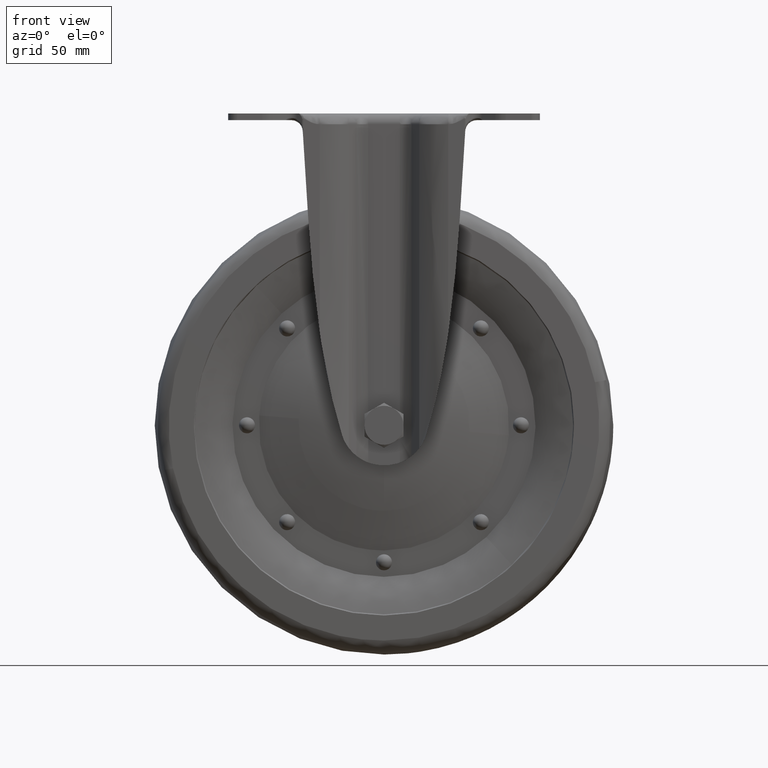
[diagram: clean part render]
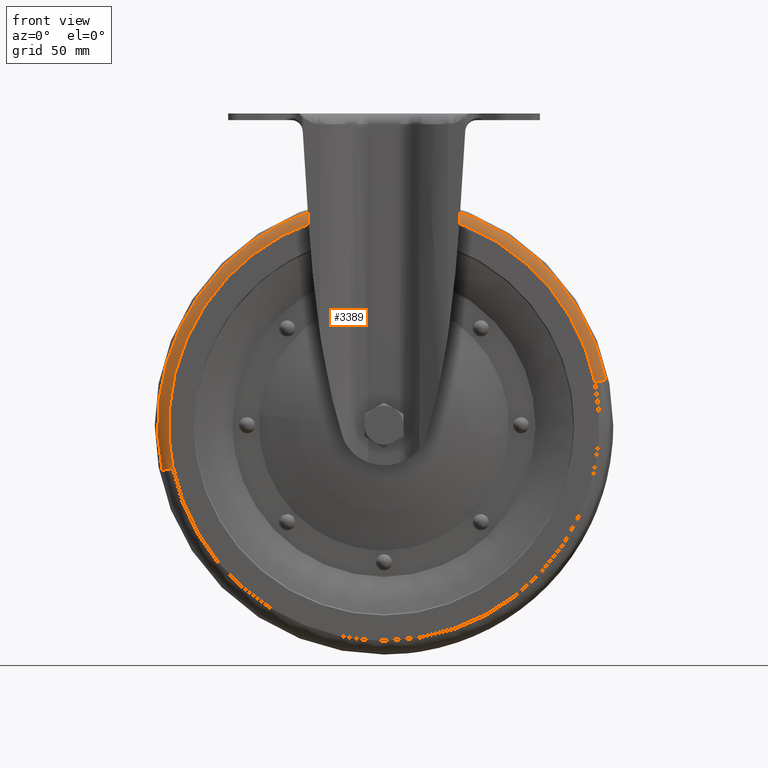
[diagram: same view with one face highlighted and labeled with its STEP entity id]
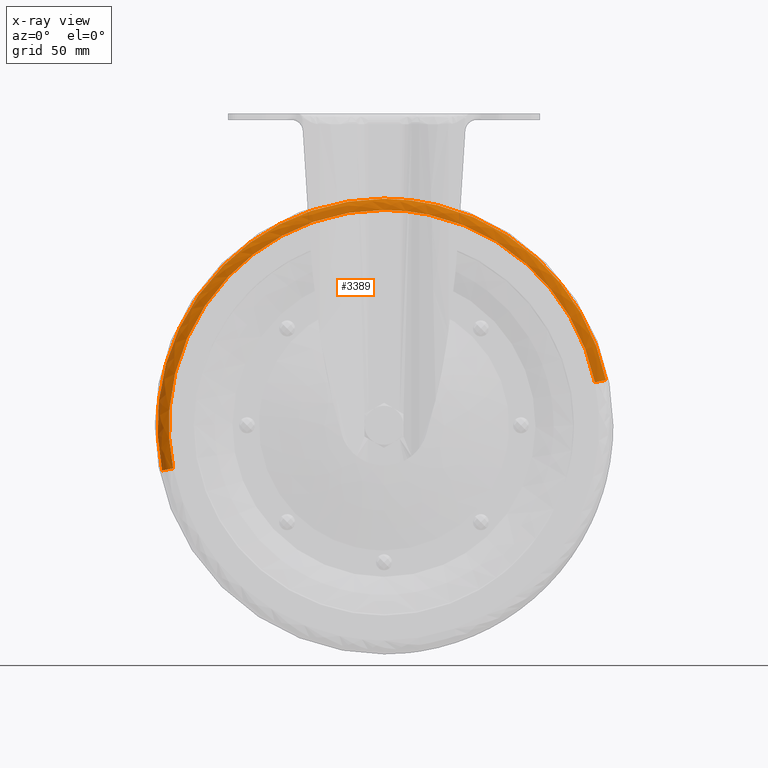
[diagram: x-ray of the same camera — body ghosted, the highlighted face saturated]
A machine part, front view. The second image highlights one B-rep face of the part: STEP entity #3389.
The next image is the same camera in x-ray: the body ghosted, the highlighted face saturated — about 0% of this face is hidden behind the body in this view.
In plain terms, the highlighted face is a freeform B-spline surface patch.
Its self-contained STEP definition (entity closure, byte-faithful):
#3099=CARTESIAN_POINT('',(0.0,-12.000020618110529,-37.212250381865452));
#3100=VERTEX_POINT('',#3099);
#3131=CARTESIAN_POINT('',(-96.797678357794183,-12.000014138391469,-155.728900118067400));
#3132=VERTEX_POINT('',#3131);
#3146=CARTESIAN_POINT('',(0.0,-12.000020618110529,-37.212250381865452));
#3147=CARTESIAN_POINT('',(-98.787753244613569,-12.000020497310594,-37.212250263207366));
#3148=CARTESIAN_POINT('',(-98.787752531803648,-12.000015194901881,-136.000000788220600));
#3149=CARTESIAN_POINT('',(-98.787752459901796,-12.000014660042572,-145.964820836724870));
#3150=CARTESIAN_POINT('',(-96.797678357794169,-12.000014138391476,-155.728900118067460));
#3158=(BOUNDED_CURVE()B_SPLINE_CURVE(2,(#3146,#3147,#3148,#3149,#3150),.UNSPECIFIED.,.F.,.U.)B_SPLINE_CURVE_WITH_KNOTS((3,2,3),(0.500000000000000,0.750000000000000,0.784232960802653),.UNSPECIFIED.)CURVE()GEOMETRIC_REPRESENTATION_ITEM()RATIONAL_B_SPLINE_CURVE((1.0,0.707106781186548,1.0,0.959893591683985,0.930770872198509))REPRESENTATION_ITEM(''));
#3159=EDGE_CURVE('',#3100,#3132,#3158,.T.);
#3194=CARTESIAN_POINT('',(96.797677946003574,-12.000016197202370,-116.271099965862010));
#3195=VERTEX_POINT('',#3194);
#3196=CARTESIAN_POINT('',(96.797677946003574,-12.000016197202376,-116.271099965861980));
#3197=CARTESIAN_POINT('',(80.684230996859725,-12.000020470205584,-37.212250527147681));
#3198=CARTESIAN_POINT('',(0.0,-12.000020618110529,-37.212250381865452));
#3206=(BOUNDED_CURVE()B_SPLINE_CURVE(2,(#3196,#3197,#3198),.UNSPECIFIED.,.F.,.U.)B_SPLINE_CURVE_WITH_KNOTS((3,3),(0.284232964236956,0.500000000000000),.UNSPECIFIED.)CURVE()GEOMETRIC_REPRESENTATION_ITEM()RATIONAL_B_SPLINE_CURVE((0.930770866355238,0.747213193526099,1.0))REPRESENTATION_ITEM(''));
#3207=EDGE_CURVE('',#3195,#3100,#3206,.T.);
#3261=CARTESIAN_POINT('',(91.997389573494090,-15.999999999999989,-117.249474772260300));
#3262=VERTEX_POINT('',#3261);
#3263=CARTESIAN_POINT('',(96.797677946003574,-12.000016197202372,-116.271099965861990));
#3264=CARTESIAN_POINT('',(95.997618807998393,-16.000000420865195,-116.434164690987730));
#3265=CARTESIAN_POINT('',(91.997389573494090,-15.999999999999995,-117.249474772260270));
#3273=(BOUNDED_CURVE()B_SPLINE_CURVE(2,(#3263,#3264,#3265),.UNSPECIFIED.,.F.,.U.)B_SPLINE_CURVE_WITH_KNOTS((3,3),(-1.706800419326867,-0.306776905520751),.UNSPECIFIED.)CURVE()GEOMETRIC_REPRESENTATION_ITEM()RATIONAL_B_SPLINE_CURVE((0.896984195257611,0.693284723806875,0.893071218100907))REPRESENTATION_ITEM(''));
#3274=EDGE_CURVE('',#3195,#3262,#3273,.T.);
#3293=CARTESIAN_POINT('',(-91.997389573494104,-15.999999999999989,-154.750525227739700));
#3294=VERTEX_POINT('',#3293);
#3308=CARTESIAN_POINT('',(-96.797678357794183,-12.000014138391480,-155.728900118067460));
#3309=CARTESIAN_POINT('',(-95.997620523772369,-16.000000420864751,-155.565835658714150));
#3310=CARTESIAN_POINT('',(-91.997389573494104,-15.999999999999988,-154.750525227739700));
#3318=(BOUNDED_CURVE()B_SPLINE_CURVE(2,(#3308,#3309,#3310),.UNSPECIFIED.,.F.,.U.)B_SPLINE_CURVE_WITH_KNOTS((3,3),(-1.706800885488391,-0.306776905520748),.UNSPECIFIED.)CURVE()GEOMETRIC_REPRESENTATION_ITEM()RATIONAL_B_SPLINE_CURVE((0.896984330908028,0.693284657284580,0.893071218100908))REPRESENTATION_ITEM(''));
#3319=EDGE_CURVE('',#3132,#3294,#3318,.T.);
#3324=CARTESIAN_POINT('',(97.401232461249862,-11.692980787607198,-118.968154599660210));
#3325=CARTESIAN_POINT('',(97.126914232632558,-11.692980787607192,-117.622242384459850));
#3326=CARTESIAN_POINT('',(77.109943992878200,-11.692980787607191,-19.411179660764482));
#3327=CARTESIAN_POINT('',(-19.739438173178652,-11.692980787607198,-39.150617833943109));
#3328=CARTESIAN_POINT('',(-116.588820339235510,-11.692980787607191,-58.890056007121750));
#3329=CARTESIAN_POINT('',(-96.571850099464783,-11.692980787607189,-157.101118730897610));
#3330=CARTESIAN_POINT('',(-96.297531870831421,-11.692980787607191,-158.447030946176770));
#3331=CARTESIAN_POINT('',(96.768646864418528,-16.279961718859180,-119.078770243995070));
#3332=CARTESIAN_POINT('',(96.496110232973933,-16.279961718859191,-117.741599239356600));
#3333=CARTESIAN_POINT('',(76.609142938212173,-16.279961718859187,-20.168381665651832));
#3334=CARTESIAN_POINT('',(-19.611237698067999,-16.279961718859195,-39.779619363719824));
#3335=CARTESIAN_POINT('',(-115.831618334348180,-16.279961718859187,-59.390857061787806));
#3336=CARTESIAN_POINT('',(-95.944651039570118,-16.279961718859180,-156.964074635572670));
#3337=CARTESIAN_POINT('',(-95.672114408109564,-16.279961718859184,-158.301245640289300));
#3338=CARTESIAN_POINT('',(92.213350934793795,-15.990206190130639,-119.875321725589800));
#3339=CARTESIAN_POINT('',(91.953643717091353,-15.990206190130637,-118.601096828311680));
#3340=CARTESIAN_POINT('',(73.002837297838525,-15.990206190130644,-25.621049617696091));
#3341=CARTESIAN_POINT('',(-18.688056542232687,-15.990206190130639,-44.309106159928767));
#3342=CARTESIAN_POINT('',(-110.378950382303900,-15.990206190130644,-62.997162702161461));
#3343=CARTESIAN_POINT('',(-91.428143963035581,-15.990206190130634,-155.977209912853400));
#3344=CARTESIAN_POINT('',(-91.168436745317948,-15.990206190130639,-157.251434810206040));
#3352=(BOUNDED_SURFACE()B_SPLINE_SURFACE(2,2,((#3324,#3331,#3338),(#3325,#3332,#3339),(#3326,#3333,#3340),(#3327,#3334,#3341),(#3328,#3335,#3342),(#3329,#3336,#3343),(#3330,#3337,#3344)),.UNSPECIFIED.,.F.,.F.,.U.)B_SPLINE_SURFACE_WITH_KNOTS((3,1,2,1,3),(3,3),(0.0,3.275286686787398,167.039621025920810,330.803955365054210,334.079242052036480),(0.0,7.841762617096178),.UNSPECIFIED.)GEOMETRIC_REPRESENTATION_ITEM()RATIONAL_B_SPLINE_SURFACE(((0.929099674791424,0.679998232933465,0.924745198496166),(0.923720159842415,0.676061022794858,0.919390896095349),(0.649364897443355,0.475263305726192,0.646321473654056),(0.918340644893406,0.672123812656251,0.914036593694532),(0.649364897443355,0.475263305726192,0.646321473654056),(0.923720159842735,0.676061022795093,0.919390896095667),(0.929099674792064,0.679998232933934,0.924745198496803)))REPRESENTATION_ITEM('')SURFACE());
#3353=ORIENTED_EDGE('',*,*,#3159,.T.);
#3354=ORIENTED_EDGE('',*,*,#3319,.T.);
#3355=CARTESIAN_POINT('',(0.0,-16.0,-42.111226000000023));
#3356=VERTEX_POINT('',#3355);
#3357=CARTESIAN_POINT('',(0.0,-16.0,-42.111226000000023));
#3358=CARTESIAN_POINT('',(-93.888774003047814,-16.0,-42.111226000621251));
#3359=CARTESIAN_POINT('',(-93.888774006779528,-15.999999999999989,-136.000000001381810));
#3360=CARTESIAN_POINT('',(-93.888774007155945,-15.999999999999998,-145.470655544469820));
#3361=CARTESIAN_POINT('',(-91.997389573494104,-15.999999999999996,-154.750525227739700));
#3369=(BOUNDED_CURVE()B_SPLINE_CURVE(2,(#3357,#3358,#3359,#3360,#3361),.UNSPECIFIED.,.F.,.U.)B_SPLINE_CURVE_WITH_KNOTS((3,2,3),(0.500000000000000,0.750000000000000,0.784232961491286),.UNSPECIFIED.)CURVE()GEOMETRIC_REPRESENTATION_ITEM()RATIONAL_B_SPLINE_CURVE((1.0,0.707106781186547,1.0,0.959893590877201,0.930770871026839))REPRESENTATION_ITEM(''));
#3370=EDGE_CURVE('',#3356,#3294,#3369,.T.);
#3371=ORIENTED_EDGE('',*,*,#3370,.F.);
#3372=CARTESIAN_POINT('',(91.997389573494090,-15.999999999999989,-117.249474772260330));
#3373=CARTESIAN_POINT('',(76.683024284696828,-16.000000000000004,-42.111225999239444));
#3374=CARTESIAN_POINT('',(0.0,-16.0,-42.111226000000023));
#3382=(BOUNDED_CURVE()B_SPLINE_CURVE(2,(#3372,#3373,#3374),.UNSPECIFIED.,.F.,.U.)B_SPLINE_CURVE_WITH_KNOTS((3,3),(0.284232961491286,0.500000000000000),.UNSPECIFIED.)CURVE()GEOMETRIC_REPRESENTATION_ITEM()RATIONAL_B_SPLINE_CURVE((0.930770871026839,0.747213190309346,1.0))REPRESENTATION_ITEM(''));
#3383=EDGE_CURVE('',#3262,#3356,#3382,.T.);
#3384=ORIENTED_EDGE('',*,*,#3383,.F.);
#3385=ORIENTED_EDGE('',*,*,#3274,.F.);
#3386=ORIENTED_EDGE('',*,*,#3207,.T.);
#3387=EDGE_LOOP('',(#3353,#3354,#3371,#3384,#3385,#3386));
#3388=FACE_OUTER_BOUND('',#3387,.T.);
#3389=ADVANCED_FACE('',(#3388),#3352,.T.);